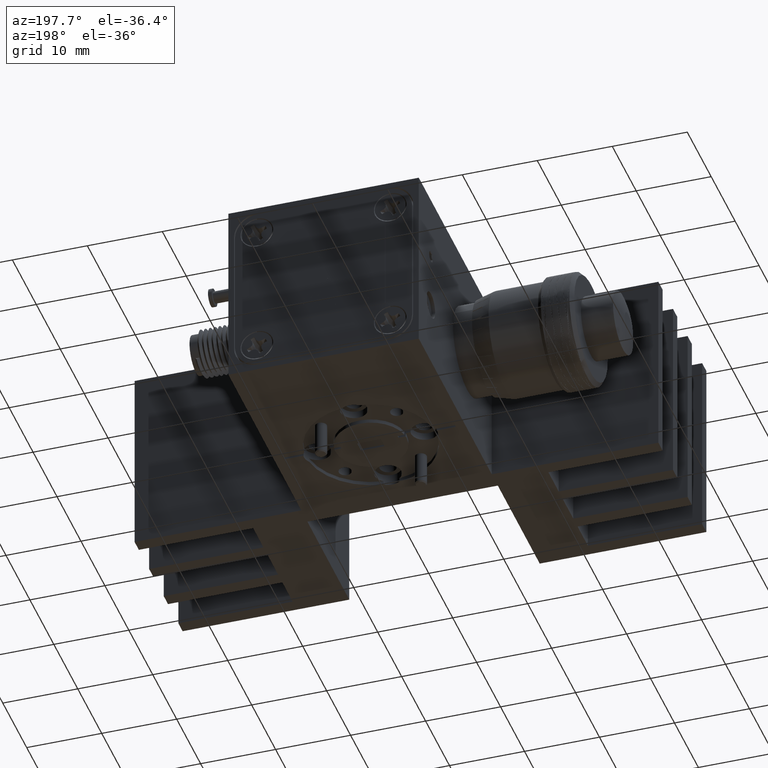
[diagram: clean part render]
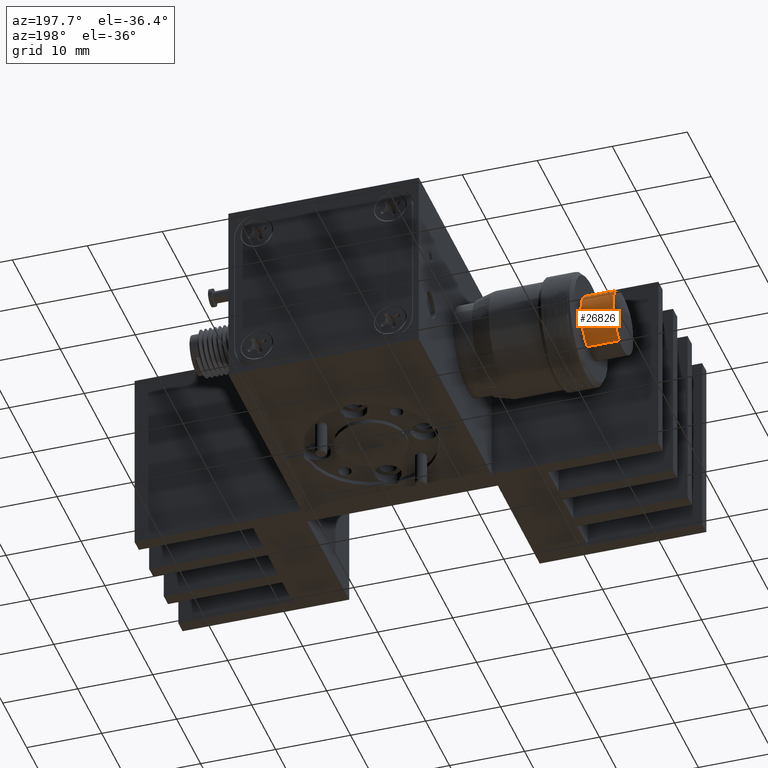
[diagram: same view with one face highlighted and labeled with its STEP entity id]
A machine part, auxiliary view. The second image highlights one B-rep face of the part: STEP entity #26826.
In plain terms, the highlighted cylindrical surface (edge-blend (fillet) strip) has radius 4.217 mm, axis along (1, 0, 0).
Its self-contained STEP definition (entity closure, byte-faithful):
#197 = CARTESIAN_POINT ( 'NONE',  ( -78.45205496333635200, 42.93841821049309000, -3.635049026800878800 ) ) ;
#1403 = CARTESIAN_POINT ( 'NONE',  ( -82.72994147096213200, 42.93841821049306200, -3.635049026800827800 ) ) ;
#11130 = CYLINDRICAL_SURFACE ( 'NONE', #45128, 4.216991657146953900 ) ;
#16069 = ORIENTED_EDGE ( 'NONE', *, *, #81800, .F. ) ;
#16360 = CARTESIAN_POINT ( 'NONE',  ( -78.45205496333635200, 39.77793620745327300, 4.184377298336373800 ) ) ;
#18909 = CARTESIAN_POINT ( 'NONE',  ( -82.72994147096213200, 41.35817720897318100, 0.2746641357677520600 ) ) ;
#19626 = CIRCLE ( 'NONE', #54584, 4.216991657146953900 ) ;
#24710 = FACE_OUTER_BOUND ( 'NONE', #74278, .T. ) ;
#26826 = ADVANCED_FACE ( 'NONE', ( #24710 ), #11130, .T. ) ;
#28548 = DIRECTION ( 'NONE',  ( 0.0000000000000000000, 0.3747318301760721400, -0.9271332457920443700 ) ) ;
#29713 = EDGE_CURVE ( 'NONE', #83251, #106266, #58228, .T. ) ;
#30219 = VERTEX_POINT ( 'NONE', #197 ) ;
#34197 = VECTOR ( 'NONE', #37392, 1000.000000000000000 ) ;
#36519 = DIRECTION ( 'NONE',  ( 1.000000000000000000, 1.121227983765158700E-016, 2.534854805195630000E-016 ) ) ;
#37392 = DIRECTION ( 'NONE',  ( 1.000000000000000000, 1.121227983765158700E-016, 2.534854805195630000E-016 ) ) ;
#44832 = CARTESIAN_POINT ( 'NONE',  ( -78.45205496333635200, 41.35817720897318100, 0.2746641357677486200 ) ) ;
#45128 = AXIS2_PLACEMENT_3D ( 'NONE', #55051, #64170, #28548 ) ;
#45786 = DIRECTION ( 'NONE',  ( 1.000000000000000000, 1.121227983765158700E-016, 2.534854805195630000E-016 ) ) ;
#54584 = AXIS2_PLACEMENT_3D ( 'NONE', #44832, #36519, #71414 ) ;
#55051 = CARTESIAN_POINT ( 'NONE',  ( -45.05340458212593500, 41.35817720897318100, 0.2746641357677537800 ) ) ;
#56707 = CARTESIAN_POINT ( 'NONE',  ( -45.05340458212593500, 42.93841821049309000, -3.635049026800873500 ) ) ;
#57400 = LINE ( 'NONE', #56707, #107562 ) ;
#58228 = CIRCLE ( 'NONE', #76232, 4.216991657146953900 ) ;
#62167 = ORIENTED_EDGE ( 'NONE', *, *, #71299, .T. ) ;
#62444 = CARTESIAN_POINT ( 'NONE',  ( -45.05340458212593500, 39.77793620745328000, 4.184377298336380900 ) ) ;
#62730 = LINE ( 'NONE', #62444, #34197 ) ;
#64170 = DIRECTION ( 'NONE',  ( 1.000000000000000000, 1.121227983765158700E-016, 2.534854805195630000E-016 ) ) ;
#67984 = CARTESIAN_POINT ( 'NONE',  ( -82.72994147096213200, 39.77793620745329400, 4.184377298336327700 ) ) ;
#71299 = EDGE_CURVE ( 'NONE', #106266, #72973, #62730, .T. ) ;
#71414 = DIRECTION ( 'NONE',  ( 0.0000000000000000000, 0.3747318301760721400, -0.9271332457920443700 ) ) ;
#72973 = VERTEX_POINT ( 'NONE', #16360 ) ;
#74278 = EDGE_LOOP ( 'NONE', ( #94214, #62167, #104050, #16069 ) ) ;
#76232 = AXIS2_PLACEMENT_3D ( 'NONE', #18909, #45786, #79597 ) ;
#79597 = DIRECTION ( 'NONE',  ( 0.0000000000000000000, 0.3747318301760721400, -0.9271332457920443700 ) ) ;
#81800 = EDGE_CURVE ( 'NONE', #83251, #30219, #57400, .T. ) ;
#81830 = DIRECTION ( 'NONE',  ( 1.000000000000000000, 1.121227983765158700E-016, 2.534854805195630000E-016 ) ) ;
#83251 = VERTEX_POINT ( 'NONE', #1403 ) ;
#94214 = ORIENTED_EDGE ( 'NONE', *, *, #29713, .T. ) ;
#96714 = EDGE_CURVE ( 'NONE', #30219, #72973, #19626, .T. ) ;
#104050 = ORIENTED_EDGE ( 'NONE', *, *, #96714, .F. ) ;
#106266 = VERTEX_POINT ( 'NONE', #67984 ) ;
#107562 = VECTOR ( 'NONE', #81830, 1000.000000000000000 ) ;